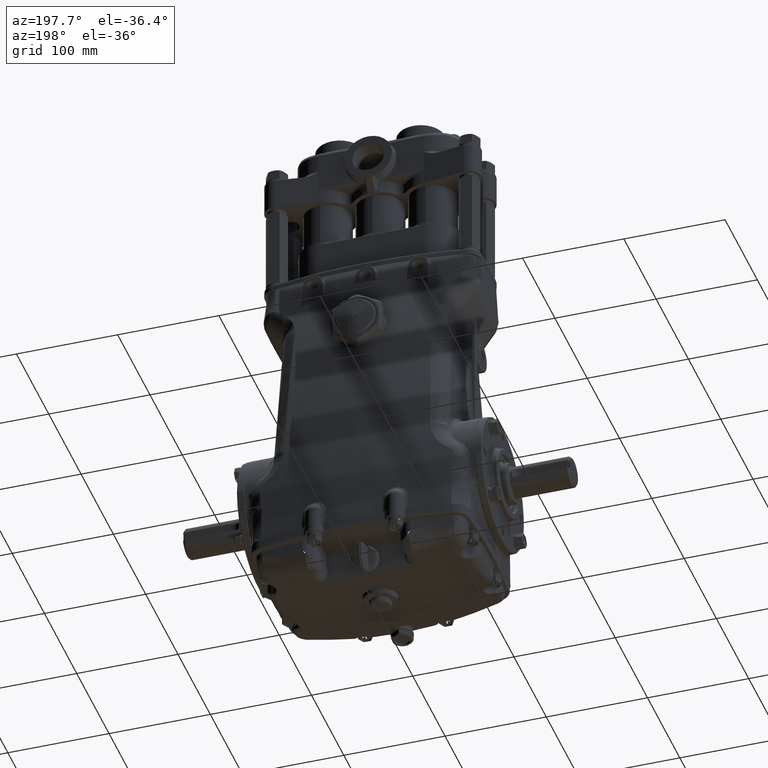
[diagram: clean part render]
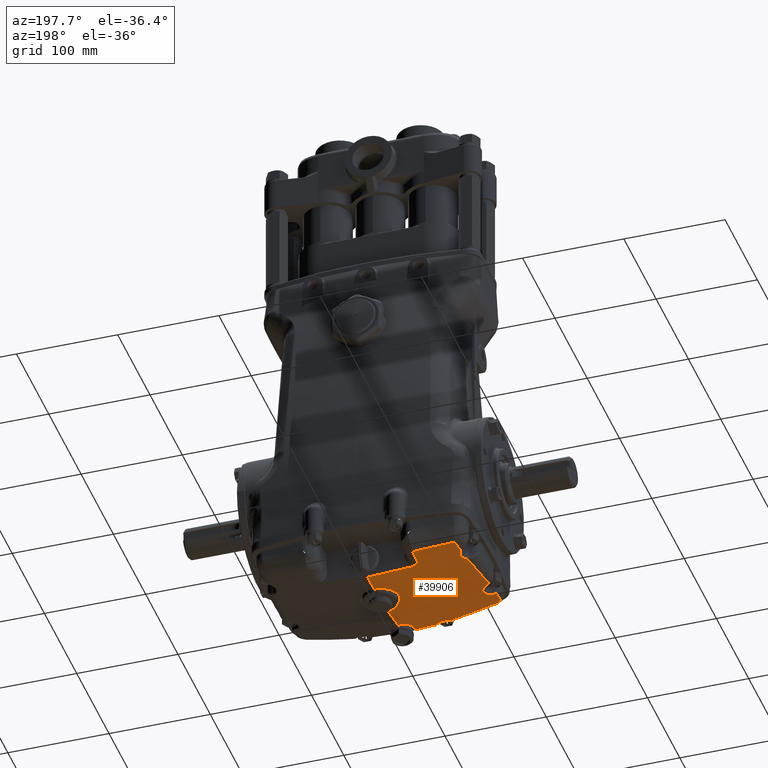
[diagram: same view with one face highlighted and labeled with its STEP entity id]
A machine part, auxiliary view. The second image highlights one B-rep face of the part: STEP entity #39906.
In plain terms, the highlighted toroidal blend (fillet) surface has major radius 100 mm and minor (blend) radius 400 mm.
Its self-contained STEP definition (entity closure, byte-faithful):
#182 = ORIENTED_EDGE ( 'NONE', *, *, #60740, .T. ) ;
#551 = VERTEX_POINT ( 'NONE', #3108 ) ;
#575 = EDGE_CURVE ( 'NONE', #52926, #551, #80609, .T. ) ;
#799 = CARTESIAN_POINT ( 'NONE',  ( -3.558036542331452168, 1.352642941017455414, -3.933798247993799180 ) ) ;
#1018 = CARTESIAN_POINT ( 'NONE',  ( -3.646664816487408256, 1.641861633727149217, -3.915456687385084233 ) ) ;
#1194 = CARTESIAN_POINT ( 'NONE',  ( -0.6658396590136336224, 0.3323736264464970946, -4.210664640046855034 ) ) ;
#1330 = CARTESIAN_POINT ( 'NONE',  ( -3.569211159553659751, 1.478279541948075426, -3.931601964570311303 ) ) ;
#1864 = VERTEX_POINT ( 'NONE', #64675 ) ;
#2119 = VERTEX_POINT ( 'NONE', #69071 ) ;
#2220 = CARTESIAN_POINT ( 'NONE',  ( -0.6313042896704010865, 0.3977660506733971535, -4.216109036910573593 ) ) ;
#2633 = CARTESIAN_POINT ( 'NONE',  ( -1.364082880242045270, -2.754656268253381945, -3.651789098153537250 ) ) ;
#2686 = B_SPLINE_CURVE_WITH_KNOTS ( 'NONE', 3,
 ( #100712, #92266, #45201, #101222 ),
 .UNSPECIFIED., .F., .F.,
 ( 4, 4 ),
 ( 6.049187461416408140E-17, 0.0003509764754748541729 ),
 .UNSPECIFIED. ) ;
#2752 = CARTESIAN_POINT ( 'NONE',  ( -0.5613533836159116941, 0.4979225309362133589, -4.224345706114779553 ) ) ;
#3108 = CARTESIAN_POINT ( 'NONE',  ( -1.702059072287212205, 1.572153632602977247, -4.183406504010035221 ) ) ;
#3159 = CARTESIAN_POINT ( 'NONE',  ( -1.294437020861755938, -2.804397625306670250, -3.642922082778243364 ) ) ;
#3569 = CARTESIAN_POINT ( 'NONE',  ( 0.000000000000000000, 1.398871258882495416, 15.42695392644761476 ) ) ;
#3743 = CARTESIAN_POINT ( 'NONE',  ( -0.4000620936014194773, -2.884814384941388532, -3.660086713610045450 ) ) ;
#3954 = CARTESIAN_POINT ( 'NONE',  ( -1.865905063327786717, -2.804038209525553160, -3.595586502535783158 ) ) ;
#4370 = CARTESIAN_POINT ( 'NONE',  ( -0.03875249259764600163, -2.168561309346253019, -3.848661969262286320 ) ) ;
#4460 = CARTESIAN_POINT ( 'NONE',  ( -3.646664816487408256, 1.641861633727149217, -3.915456687385084233 ) ) ;
#4896 = CARTESIAN_POINT ( 'NONE',  ( -0.3515532238361044892, -2.324802562732777744, -3.808304172492186002 ) ) ;
#5136 = ORIENTED_EDGE ( 'NONE', *, *, #7590, .T. ) ;
#5387 = CARTESIAN_POINT ( 'NONE',  ( -0.05520579533585188992, -2.170302024213781600, -3.848214535836679939 ) ) ;
#5585 = EDGE_CURVE ( 'NONE', #65033, #21472, #34047, .T. ) ;
#5893 = CARTESIAN_POINT ( 'NONE',  ( -3.557528499339322803, -1.379325260087862715, -3.682774166642691860 ) ) ;
#5901 = CARTESIAN_POINT ( 'NONE',  ( -0.3180972402130911592, -2.290199662132852421, -3.817280260578164164 ) ) ;
#6173 = ORIENTED_EDGE ( 'NONE', *, *, #25948, .T. ) ;
#6425 = CARTESIAN_POINT ( 'NONE',  ( -3.561708820047775781, -1.456503664008730770, -3.667735088596133508 ) ) ;
#6738 = CARTESIAN_POINT ( 'NONE',  ( -1.839702383721283807, 1.600343899877532339, -4.170657121996544703 ) ) ;
#6943 = CARTESIAN_POINT ( 'NONE',  ( -3.557813428778107134, -1.412516147443856118, -3.676632753172118129 ) ) ;
#7121 = CARTESIAN_POINT ( 'NONE',  ( -3.824356561232345797, 0.1923408286097718911, -3.836089084730111232 ) ) ;
#7381 = CARTESIAN_POINT ( 'NONE',  ( -3.115494169941632308, -2.681998754487130210, -3.467583127712007940 ) ) ;
#7465 = CARTESIAN_POINT ( 'NONE',  ( -3.601843088975583473, -1.195123805730012867, -3.706980786636408176 ) ) ;
#7590 = EDGE_CURVE ( 'NONE', #551, #65033, #56223, .T. ) ;
#8181 = CARTESIAN_POINT ( 'NONE',  ( -3.794676958802428945, 0.4450010077993709068, -3.859411781232362948 ) ) ;
#8597 = CARTESIAN_POINT ( 'NONE',  ( -0.7151464090954867681, 0.1947740051705818820, -4.199037833616118931 ) ) ;
#8686 = CARTESIAN_POINT ( 'NONE',  ( -3.874388036586342565, -0.2876572989029211880, -3.780937091861289012 ) ) ;
#9012 = B_SPLINE_CURVE_WITH_KNOTS ( 'NONE', 3,
 ( #20708, #85698, #30160, #13822, #102602, #94658, #13325, #94153, #78262, #85169 ),
 .UNSPECIFIED., .F., .F.,
 ( 4, 1, 1, 2, 2, 4 ),
 ( 0.000000000000000000, 0.2499999999999934497, 0.3749999999999841793, 0.4374999999999823475, 0.4999999999999804601, 1.000000000000000000 ),
 .UNSPECIFIED. ) ;
#9022 = EDGE_CURVE ( 'NONE', #45510, #17259, #82433, .T. ) ;
#9248 = CARTESIAN_POINT ( 'NONE',  ( -3.619782770036453101, 1.153003437474545256, -3.920465056550476390 ) ) ;
#9463 = CARTESIAN_POINT ( 'NONE',  ( -3.626514470255033373, 1.818311045645884860, -3.915473805396091134 ) ) ;
#9521 = CARTESIAN_POINT ( 'NONE',  ( -1.339466257598047827, -2.769926032194784060, -3.649340496259566358 ) ) ;
#9640 = CARTESIAN_POINT ( 'NONE',  ( -0.6436197337498654747, 0.3762321093314812126, -4.214322574150810574 ) ) ;
#10041 = CARTESIAN_POINT ( 'NONE',  ( -1.773899349228732936, -2.741790388264389922, -3.621584547401897947 ) ) ;
#10237 = CARTESIAN_POINT ( 'NONE',  ( -3.787706684817586211, 0.5026324402949193804, -3.864249473063884999 ) ) ;
#10555 = CARTESIAN_POINT ( 'NONE',  ( -1.844824157437632950, -2.785741652843495064, -3.602745482561447332 ) ) ;
#10713 = CARTESIAN_POINT ( 'NONE',  ( -3.889728796792139676, -0.9685609581753976682, -3.687365237285401331 ) ) ;
#11149 = CARTESIAN_POINT ( 'NONE',  ( -1.245739980400027758, -2.855051657995907100, -3.631991507844216649 ) ) ;
#11161 = CARTESIAN_POINT ( 'NONE',  ( -3.808751006990228394, -2.557495466567951237, -3.371037965365549116 ) ) ;
#11558 = CARTESIAN_POINT ( 'NONE',  ( -3.586567978287549696, 2.204579372434504414, -3.907619816998144646 ) ) ;
#11763 = CARTESIAN_POINT ( 'NONE',  ( -0.4664539487269453999, -2.573755688745085646, -3.743110695277837685 ) ) ;
#12201 = CARTESIAN_POINT ( 'NONE',  ( -3.749541916963616384, -2.585000395717646615, -3.375630808982953202 ) ) ;
#12288 = CARTESIAN_POINT ( 'NONE',  ( -0.4271558012051866471, -2.439955005846153657, -3.778285444153360206 ) ) ;
#12377 = VERTEX_POINT ( 'NONE', #102492 ) ;
#12809 = CARTESIAN_POINT ( 'NONE',  ( -0.4666539912037031557, -2.698749515008310507, -3.709959679532332633 ) ) ;
#13111 = CARTESIAN_POINT ( 'NONE',  ( -2.003069288343956700, 1.694939550856162658, -4.153111690900376907 ) ) ;
#13152 = DIRECTION ( 'NONE',  ( 0.000000000000000000, 0.000000000000000000, 1.000000000000000000 ) ) ;
#13310 = CARTESIAN_POINT ( 'NONE',  ( -0.4704666855075380627, -2.608629646960346271, -3.733894284309645872 ) ) ;
#13325 = CARTESIAN_POINT ( 'NONE',  ( -3.883271050964964832, -1.826111837211211730, -3.530696165240563733 ) ) ;
#13699 = CARTESIAN_POINT ( 'NONE',  ( 0.000000000000000000, -2.167208969044768896, -3.849009838011859141 ) ) ;
#13799 = CARTESIAN_POINT ( 'NONE',  ( -3.634850948037882556, -1.639999152143229777, -3.618346498524885657 ) ) ;
#13822 = CARTESIAN_POINT ( 'NONE',  ( -3.896749232888760073, -1.836051885781699644, -3.525805192844899238 ) ) ;
#14057 = AXIS2_PLACEMENT_3D ( 'NONE', #83957, #94465, #13152 ) ;
#14307 = CARTESIAN_POINT ( 'NONE',  ( -3.725752653479702303, -1.736515680076643919, -3.581122572377397173 ) ) ;
#14388 = CARTESIAN_POINT ( 'NONE',  ( 2.003172396172104453E-16, 1.552323950496150795, -4.257337785501216665 ) ) ;
#15149 = CARTESIAN_POINT ( 'NONE',  ( -1.758305726548180514, 1.576970522116405871, -4.178409998767908640 ) ) ;
#15870 = CARTESIAN_POINT ( 'NONE',  ( -3.872407700373652339, -0.9735357559509230096, -3.690100359438702515 ) ) ;
#16101 = CARTESIAN_POINT ( 'NONE',  ( -3.559074637217336967, 1.338662804192957356, -3.933559448103052247 ) ) ;
#16274 = ORIENTED_EDGE ( 'NONE', *, *, #95577, .T. ) ;
#16589 = CARTESIAN_POINT ( 'NONE',  ( -3.791746184675607534, 0.4692712009456285194, -3.861463653829530163 ) ) ;
#16631 = CARTESIAN_POINT ( 'NONE',  ( -3.557630086493761556, 1.394595553143769706, -3.933941454815170768 ) ) ;
#16836 = EDGE_CURVE ( 'NONE', #79165, #34597, #25662, .T. ) ;
#16861 = VERTEX_POINT ( 'NONE', #41904 ) ;
#16998 = ORIENTED_EDGE ( 'NONE', *, *, #27344, .T. ) ;
#17259 = VERTEX_POINT ( 'NONE', #104199 ) ;
#17313 = CARTESIAN_POINT ( 'NONE',  ( -0.4000620936014194773, -2.884814384941388532, -3.660086713610045450 ) ) ;
#17407 = CARTESIAN_POINT ( 'NONE',  ( -1.822204368419263698, -2.769635333946053102, -3.609373799083536394 ) ) ;
#17527 = CARTESIAN_POINT ( 'NONE',  ( -0.2630543390630924461, 0.7080051471990993495, -4.241181116889840119 ) ) ;
#17620 = CARTESIAN_POINT ( 'NONE',  ( -3.845602816808145974, -0.001297524695629234323, -3.815247980709609799 ) ) ;
#17673 = CARTESIAN_POINT ( 'NONE',  ( -3.629613217835725880, 1.619489777949896236, -3.919021646392297331 ) ) ;
#17952 = VERTEX_POINT ( 'NONE', #85742 ) ;
#18064 = CARTESIAN_POINT ( 'NONE',  ( -0.5187115258286668640, 0.5419200791875214973, -4.227912918844326740 ) ) ;
#18470 = CARTESIAN_POINT ( 'NONE',  ( -1.582301698735254281, -2.697416655977635358, -3.650503169443640061 ) ) ;
#18537 = ORIENTED_EDGE ( 'NONE', *, *, #42376, .T. ) ;
#18621 = CARTESIAN_POINT ( 'NONE',  ( -0.0003315103618063512930, -2.167209043041733008, -3.849009818742299860 ) ) ;
#19097 = CARTESIAN_POINT ( 'NONE',  ( -0.4919088603346521427, 0.5673527248237739684, -4.229967792817655337 ) ) ;
#19099 = CARTESIAN_POINT ( 'NONE',  ( -3.823806146129085537, -1.793153042647171569, -3.549776368419175654 ) ) ;
#19621 = CARTESIAN_POINT ( 'NONE',  ( -0.04758081235691756505, -0.7082800023635058562, -4.116432384736667949 ) ) ;
#20181 = CARTESIAN_POINT ( 'NONE',  ( -0.4435138577957550843, -2.795684760062581375, -3.684059013804886540 ) ) ;
#20691 = CARTESIAN_POINT ( 'NONE',  ( -0.004850355540382600417, -2.167229841399113788, -3.849004462922370084 ) ) ;
#20708 = CARTESIAN_POINT ( 'NONE',  ( -3.931430012626015102, -1.867895298749763677, -3.511778674847698234 ) ) ;
#20804 = CARTESIAN_POINT ( 'NONE',  ( -1.872930650244136963, -2.810002607033998956, -3.593235740307789250 ) ) ;
#21210 = CARTESIAN_POINT ( 'NONE',  ( -0.4199776336757888862, -2.850308494666960790, -3.669386021508888707 ) ) ;
#21472 = VERTEX_POINT ( 'NONE', #45711 ) ;
#21591 = CARTESIAN_POINT ( 'NONE',  ( -2.008673690766307640, 1.931285806549176032, -4.148006241757110857 ) ) ;
#21725 = CARTESIAN_POINT ( 'NONE',  ( -3.782867252268417690, -1.773366506794162190, -3.562143213188625257 ) ) ;
#21732 = CARTESIAN_POINT ( 'NONE',  ( -0.4710030549154931023, -2.638747068667179008, -3.725911520241202091 ) ) ;
#21854 = VERTEX_POINT ( 'NONE', #19099 ) ;
#22232 = CARTESIAN_POINT ( 'NONE',  ( -3.676278122297544471, -1.691724115249404470, -3.599952879475762035 ) ) ;
#22353 = CARTESIAN_POINT ( 'NONE',  ( -1.876542483643144577, -2.812870495884016275, -3.592079507783254577 ) ) ;
#22747 = CARTESIAN_POINT ( 'NONE',  ( -3.797900736036087022, -1.781521253002814831, -3.557435384201006467 ) ) ;
#23117 = CARTESIAN_POINT ( 'NONE',  ( -1.876542483643144577, -2.812870495884016275, -3.592079507783254577 ) ) ;
#23283 = CARTESIAN_POINT ( 'NONE',  ( -3.823806146129085537, -1.793153042647171569, -3.549776368419175654 ) ) ;
#23797 = CARTESIAN_POINT ( 'NONE',  ( -3.600898654270699772, -1.582827322375441659, -3.636138242680543531 ) ) ;
#23979 = CARTESIAN_POINT ( 'NONE',  ( -3.856021650520939037, -0.1013363223085721743, -3.803681025626075574 ) ) ;
#24025 = CARTESIAN_POINT ( 'NONE',  ( -3.587931312282341079, 1.215500707963219851, -3.927282676930602179 ) ) ;
#24487 = CARTESIAN_POINT ( 'NONE',  ( -3.882422683516364881, -0.3767430802198906692, -3.769234801205942009 ) ) ;
#24540 = CARTESIAN_POINT ( 'NONE',  ( -3.564906708623706955, 1.296798175091047334, -3.932267049232522460 ) ) ;
#25433 = CARTESIAN_POINT ( 'NONE',  ( -0.6757728256282572454, 0.3100357875975383593, -4.208792192486542127 ) ) ;
#25532 = CARTESIAN_POINT ( 'NONE',  ( -1.890906886572283119, 1.623384772786901076, -4.165469755234848748 ) ) ;
#25577 = CARTESIAN_POINT ( 'NONE',  ( -3.590000298304392157, 1.545245332004949290, -3.927292317479010197 ) ) ;
#25648 = ORIENTED_EDGE ( 'NONE', *, *, #102072, .T. ) ;
#25662 = B_SPLINE_CURVE_WITH_KNOTS ( 'NONE', 3,
 ( #64645, #72084, #104330, #24487, #8686, #31897, #64126, #57241, #49316, #33444, #57763, #56727, #23979, #89998, #71536, #17620, #81555, #7121, #80527, #79473, #56199, #8181, #40354, #88966, #16589, #48799, #81035, #74149, #10237, #100564, #42419, #50873 ),
 .UNSPECIFIED., .F., .F.,
 ( 4, 2, 2, 1, 1, 2, 2, 1, 1, 1, 2, 2, 2, 1, 1, 1, 2, 2, 1, 1, 4 ),
 ( 0.3235526513223349054, 0.4296512744850297105, 0.4827005860663771131, 0.4959629139617139915, 0.4992784959355481833, 0.4996929436822774573, 0.5001073914290067313, 0.5009362869224653902, 0.5025940779093825972, 0.5092252418570515360, 0.5357498976477277353, 0.5887992092290801338, 0.6153238650197562221, 0.6219550289674252719, 0.6236128199543424788, 0.6244417154478011378, 0.6248561631945304118, 0.6252706109412597968, 0.6285861929150942107, 0.6418485208104317552, 0.7479471439731324445 ),
 .UNSPECIFIED. ) ;
#25784 = CARTESIAN_POINT ( 'NONE',  ( -3.629545704127817185, 1.791176114491642046, -3.915610467165770991 ) ) ;
#25948 = EDGE_CURVE ( 'NONE', #2119, #17952, #2686, .T. ) ;
#26967 = CARTESIAN_POINT ( 'NONE',  ( -0.6823706657701417155, -2.879987158023668670, -3.655534384585330532 ) ) ;
#27009 = CARTESIAN_POINT ( 'NONE',  ( -0.5751992477293694783, -0.4339937578021841325, -4.142675562527530886 ) ) ;
#27344 = EDGE_CURVE ( 'NONE', #21472, #56263, #80618, .T. ) ;
#27470 = ORIENTED_EDGE ( 'NONE', *, *, #9022, .T. ) ;
#27530 = CARTESIAN_POINT ( 'NONE',  ( -0.09457813546736117127, -0.7037112056917489422, -4.116877650910711672 ) ) ;
#27608 = CARTESIAN_POINT ( 'NONE',  ( -3.326332494310697552, 2.245008663854715980, -3.953787052236676924 ) ) ;
#28047 = CARTESIAN_POINT ( 'NONE',  ( -0.6901489628261248122, -0.2298383925617558943, -4.161550217411766006 ) ) ;
#28102 = CARTESIAN_POINT ( 'NONE',  ( -0.2120262397635651885, -2.217047972753988017, -3.836183668152953974 ) ) ;
#28530 = CARTESIAN_POINT ( 'NONE',  ( -1.865905063327786717, -2.804038209525553160, -3.595586502535783158 ) ) ;
#28564 = CARTESIAN_POINT ( 'NONE',  ( -0.7326448474044733317, -0.02334760493757999725, -4.180067160936830284 ) ) ;
#28614 = CARTESIAN_POINT ( 'NONE',  ( -0.3335317334427909119, -2.304989040155785762, -3.813447997316724791 ) ) ;
#28807 = CARTESIAN_POINT ( 'NONE',  ( 2.003172396172104453E-16, 1.552323950496150795, -4.257337785501216665 ) ) ;
#29011 = VERTEX_POINT ( 'NONE', #13699 ) ;
#29040 = CARTESIAN_POINT ( 'NONE',  ( -3.780035846569725688, -2.573797604094840263, -3.372507778797797506 ) ) ;
#29073 = CARTESIAN_POINT ( 'NONE',  ( -0.4762676445515682810, -0.5345743794389585801, -4.133164754572899113 ) ) ;
#29121 = CARTESIAN_POINT ( 'NONE',  ( -0.2588357166316751501, -2.244699816279652094, -3.829048474491703491 ) ) ;
#29203 = ORIENTED_EDGE ( 'NONE', *, *, #65518, .T. ) ;
#29391 = ORIENTED_EDGE ( 'NONE', *, *, #90721, .T. ) ;
#29623 = CARTESIAN_POINT ( 'NONE',  ( -0.4688351809062094033, -2.678922122723515375, -3.715237212575820180 ) ) ;
#30139 = CARTESIAN_POINT ( 'NONE',  ( -3.681603483045332137, -1.086558863354843085, -3.709808868518035929 ) ) ;
#30146 = CARTESIAN_POINT ( 'NONE',  ( -0.4105939205455987340, -2.867825373719068871, -3.664669352164220850 ) ) ;
#30160 = CARTESIAN_POINT ( 'NONE',  ( -3.911795973998309250, -1.848312863953837537, -3.520077436694757811 ) ) ;
#30224 = CARTESIAN_POINT ( 'NONE',  ( -3.894353775054843592, -2.412844718384135501, -3.391082440071080839 ) ) ;
#30981 = CARTESIAN_POINT ( 'NONE',  ( -1.702059072287212205, 1.572153632602977247, -4.183406504010035221 ) ) ;
#31097 = CARTESIAN_POINT ( 'NONE',  ( -2.652583506864619523, -2.737926215506778505, -3.520903792172098257 ) ) ;
#31188 = CARTESIAN_POINT ( 'NONE',  ( -3.611056957081335117, -1.602384896594928110, -3.630365298136287056 ) ) ;
#31715 = CARTESIAN_POINT ( 'NONE',  ( -3.741710729344374098, -1.036040928004970940, -3.706277664822343443 ) ) ;
#31897 = CARTESIAN_POINT ( 'NONE',  ( -3.863250567740788011, -0.1732672366160281363, -3.795056054097240672 ) ) ;
#32275 = B_SPLINE_CURVE_WITH_KNOTS ( 'NONE', 3,
 ( #23283, #95157, #22747, #21725, #54976, #56017, #78766, #14307, #87216, #22232, #54450, #47583, #13799, #86172, #31188, #23797, #70831, #46018, #47069, #6425, #78243, #6943, #103087, #5893, #94635, #38063, #39113, #55491, #63418, #79814, #7465, #39646, #38587, #30139, #71892, #48104, #104145, #31715, #80345, #70326, #15870 ),
 .UNSPECIFIED., .F., .F.,
 ( 4, 1, 2, 2, 2, 2, 2, 2, 2, 2, 2, 2, 2, 2, 2, 2, 2, 2, 2, 2, 4 ),
 ( 0.000000000000000000, 0.03124999999999832773, 0.04687499999999751588, 0.06249999999999671096, 0.1249999999999958089, 0.1874999999999948930, 0.2187499999999944489, 0.2499999999999940048, 0.3124999999999937272, 0.3749999999999933942, 0.4374999999999931166, 0.4687499999999930611, 0.4999999999999930056, 0.5624999999999931166, 0.5937499999999933387, 0.6249999999999936717, 0.7499999999999951150, 0.8124999999999960032, 0.8437499999999964473, 0.8749999999999968914, 1.000000000000000000 ),
 .UNSPECIFIED. ) ;
#33193 = CARTESIAN_POINT ( 'NONE',  ( -3.630471576266146805, 1.782938555278715365, -3.915643392077000851 ) ) ;
#33444 = CARTESIAN_POINT ( 'NONE',  ( -3.856571851715241195, -0.1067341529102286413, -3.803042659615984977 ) ) ;
#33488 = CARTESIAN_POINT ( 'NONE',  ( -3.570906502327740206, 1.485177623508451727, -3.931252389190742491 ) ) ;
#33917 = ORIENTED_EDGE ( 'NONE', *, *, #50280, .T. ) ;
#33967 = CARTESIAN_POINT ( 'NONE',  ( -1.962851284236456051, 1.666562271230724201, -4.157698992238735514 ) ) ;
#34047 = CIRCLE ( 'NONE', #76235, 15.74803149606299613 ) ;
#34597 = VERTEX_POINT ( 'NONE', #94522 ) ;
#34808 = CARTESIAN_POINT ( 'NONE',  ( -1.539795395510776155, -2.699382030295283119, -3.653449653502197858 ) ) ;
#34891 = CARTESIAN_POINT ( 'NONE',  ( -3.889791300497213555, -2.457450194102140273, -3.380663499719030796 ) ) ;
#34930 = CARTESIAN_POINT ( 'NONE',  ( -0.5916356069846164800, 0.4596852687933722370, -4.221221596634565643 ) ) ;
#35324 = CARTESIAN_POINT ( 'NONE',  ( -3.922866597083941365, -0.9542416793586864232, -3.682798854708527081 ) ) ;
#35438 = CARTESIAN_POINT ( 'NONE',  ( -0.3199554128038990530, -0.6378019422072793709, -4.123271795498789416 ) ) ;
#35457 = CARTESIAN_POINT ( 'NONE',  ( -3.894353775054843592, -2.412844718384135501, -3.391082440071080839 ) ) ;
#35926 = B_SPLINE_CURVE_WITH_KNOTS ( 'NONE', 3,
 ( #3954, #53546, #20804, #22353 ),
 .UNSPECIFIED., .F., .F.,
 ( 4, 4 ),
 ( 0.000000000000000000, 0.0003623067658960041262 ),
 .UNSPECIFIED. ) ;
#35973 = CARTESIAN_POINT ( 'NONE',  ( -0.7333930364450115258, -4.736762322988630755E-16, -4.182122793431191532 ) ) ;
#36048 = CARTESIAN_POINT ( 'NONE',  ( -2.008661041545683812, 2.395021426171620060, -4.123632080681848500 ) ) ;
#36327 = CARTESIAN_POINT ( 'NONE',  ( -3.606405909826833511, 2.004984302575314015, -3.913313031294023858 ) ) ;
#36465 = CARTESIAN_POINT ( 'NONE',  ( -3.799545904417045428, -2.563412623788971612, -3.371332548413954022 ) ) ;
#36547 = CARTESIAN_POINT ( 'NONE',  ( -0.1414206404958676944, -2.188929745826314832, -3.843425143802710497 ) ) ;
#36612 = EDGE_LOOP ( 'NONE', ( #5136, #91312, #16998, #33917, #29203, #25648, #61902, #6173, #88382, #16274, #182, #92108, #27470, #71614, #72067, #37949, #64117, #38469, #85339, #18537, #29391, #85835 ) ) ;
#36900 = CARTESIAN_POINT ( 'NONE',  ( -2.008661041545683812, 2.395021426171620060, -4.123632080681848500 ) ) ;
#37006 = CARTESIAN_POINT ( 'NONE',  ( -0.7247687298725997707, -0.09338117888336211481, -4.173847195936508214 ) ) ;
#37049 = CARTESIAN_POINT ( 'NONE',  ( -0.4364444353106010643, -2.814216174383458391, -3.679086746490721094 ) ) ;
#37558 = CARTESIAN_POINT ( 'NONE',  ( -0.3550262394684820522, -2.328743715141699866, -3.807280587534016103 ) ) ;
#37949 = ORIENTED_EDGE ( 'NONE', *, *, #48757, .T. ) ;
#38063 = CARTESIAN_POINT ( 'NONE',  ( -3.562290405531893800, -1.323502582385556403, -3.691970927694604221 ) ) ;
#38071 = CARTESIAN_POINT ( 'NONE',  ( -0.4215705963410009138, -2.428415481028420420, -3.781304039169750553 ) ) ;
#38469 = ORIENTED_EDGE ( 'NONE', *, *, #46327, .T. ) ;
#38587 = CARTESIAN_POINT ( 'NONE',  ( -3.666309327381368721, -1.103004602323025773, -3.710060390205493608 ) ) ;
#38789 = CARTESIAN_POINT ( 'NONE',  ( -0.5680533067871709196, 1.553977244222778387, -4.251173788573900048 ) ) ;
#39113 = CARTESIAN_POINT ( 'NONE',  ( -3.569199946859465733, -1.290846983093253630, -3.696464366414474068 ) ) ;
#39646 = CARTESIAN_POINT ( 'NONE',  ( -3.623986498022464531, -1.156194240433309428, -3.709360853722023066 ) ) ;
#39906 = ADVANCED_FACE ( 'NONE', ( #75917 ), #58223, .T. ) ;
#40354 = CARTESIAN_POINT ( 'NONE',  ( -3.792665419278174799, 0.4616671380343815856, -3.860823300251764234 ) ) ;
#40399 = CARTESIAN_POINT ( 'NONE',  ( -3.627159963890523198, 1.141184636597230018, -3.918890905537267599 ) ) ;
#40913 = CARTESIAN_POINT ( 'NONE',  ( -3.669700742828946982, 1.085740204855080382, -3.909843487322180788 ) ) ;
#41708 = CARTESIAN_POINT ( 'NONE',  ( -1.568112543660154401, -2.697609937580156547, -3.651622421538722740 ) ) ;
#41820 = CARTESIAN_POINT ( 'NONE',  ( -0.7333930364450115258, -4.736762322988630755E-16, -4.182122793431191532 ) ) ;
#41904 = CARTESIAN_POINT ( 'NONE',  ( -3.586567978287549696, 2.204579372434504414, -3.907619816998144646 ) ) ;
#42376 = EDGE_CURVE ( 'NONE', #16861, #1864, #49293, .T. ) ;
#42419 = CARTESIAN_POINT ( 'NONE',  ( -3.741802068870107245, 0.8746626578058293022, -3.891171926211064669 ) ) ;
#42736 = CARTESIAN_POINT ( 'NONE',  ( -1.865905063327786717, -2.804038209525553160, -3.595586502535783158 ) ) ;
#42855 = CARTESIAN_POINT ( 'NONE',  ( -0.3314371216564471756, 0.6791190190455137499, -4.238900926288713400 ) ) ;
#42936 = CARTESIAN_POINT ( 'NONE',  ( -2.538175973886774628, 2.344752768743589399, -4.066935304130395501 ) ) ;
#43747 = CARTESIAN_POINT ( 'NONE',  ( -3.618610932917983192, 1.890614810592296857, -3.914835308199426933 ) ) ;
#43952 = CARTESIAN_POINT ( 'NONE',  ( -0.4696087652016088243, -2.669014039567201735, -3.717871877192220786 ) ) ;
#44426 = CARTESIAN_POINT ( 'NONE',  ( -0.6279333557682612588, -0.3564562210456924674, -4.149901587129065206 ) ) ;
#44476 = CARTESIAN_POINT ( 'NONE',  ( -0.1095595880802628652, -2.179587292406928611, -3.845828589951099996 ) ) ;
#45015 = CARTESIAN_POINT ( 'NONE',  ( -0.4554017452758363227, -2.757384325294819583, -3.694314258337130674 ) ) ;
#45201 = CARTESIAN_POINT ( 'NONE',  ( -1.251971637957772110, -2.848422811770495944, -3.633445997943378636 ) ) ;
#45315 = CARTESIAN_POINT ( 'NONE',  ( -1.997352902426142940, 1.690748888302129327, -4.153774301534654434 ) ) ;
#45470 = CARTESIAN_POINT ( 'NONE',  ( -0.7048825744681508354, -0.1855135888287400558, -4.165576125922034301 ) ) ;
#45510 = VERTEX_POINT ( 'NONE', #35457 ) ;
#45515 = CARTESIAN_POINT ( 'NONE',  ( -0.4345050193925160675, -2.456275259616834017, -3.774012791601869754 ) ) ;
#45711 = CARTESIAN_POINT ( 'NONE',  ( 1.484937481530693995E-28, 0.7562672354312620637, -4.244969138634028916 ) ) ;
#45806 = CARTESIAN_POINT ( 'NONE',  ( -1.980190692304566902, 1.678499398813846799, -4.155740781809343254 ) ) ;
#46018 = CARTESIAN_POINT ( 'NONE',  ( -3.576623568143437293, -1.521544856101116450, -3.652603060102907140 ) ) ;
#46024 = CARTESIAN_POINT ( 'NONE',  ( -0.2935360423449569489, -2.269699446201539406, -3.822586271018620252 ) ) ;
#46062 = B_SPLINE_CURVE_WITH_KNOTS ( 'NONE', 3,
 ( #1018, #50106, #57503, #33193, #65435, #25784, #97697, #9463, #90265, #43747, #36327, #93405, #11558 ),
 .UNSPECIFIED., .F., .F.,
 ( 4, 2, 2, 1, 1, 1, 2, 4 ),
 ( 0.8780055780770459339, 0.9085041835577849501, 0.9104103464003311386, 0.9123165092428773271, 0.9161288349279695931, 0.9237534862981541250, 0.9390027890385231890, 1.000000000000000000 ),
 .UNSPECIFIED. ) ;
#46327 = EDGE_CURVE ( 'NONE', #34597, #75880, #52570, .T. ) ;
#47069 = CARTESIAN_POINT ( 'NONE',  ( -3.565556694311471375, -1.478300578887186800, -3.662912931871748601 ) ) ;
#47583 = CARTESIAN_POINT ( 'NONE',  ( -3.647908808587282170, -1.657888597091843330, -3.612256570413352019 ) ) ;
#48104 = CARTESIAN_POINT ( 'NONE',  ( -3.714862701671600931, -1.056561312265949848, -3.708223070828036150 ) ) ;
#48757 = EDGE_CURVE ( 'NONE', #84517, #79165, #101413, .T. ) ;
#48799 = CARTESIAN_POINT ( 'NONE',  ( -3.791561897157138539, 0.4707945788504462326, -3.861591610310981526 ) ) ;
#48846 = CARTESIAN_POINT ( 'NONE',  ( -3.559631653986548905, 1.422800986008825541, -3.933555657411801132 ) ) ;
#49293 = B_SPLINE_CURVE_WITH_KNOTS ( 'NONE', 3,
 ( #67256, #27608, #67774, #42936, #91574, #36048 ),
 .UNSPECIFIED., .F., .F.,
 ( 4, 2, 4 ),
 ( 0.01283934888689720714, 0.03321189596127591820, 0.05358444303565463446 ),
 .UNSPECIFIED. ) ;
#49316 = CARTESIAN_POINT ( 'NONE',  ( -3.856719873080187710, -0.1081883091147055054, -3.802870456949497768 ) ) ;
#49740 = CARTESIAN_POINT ( 'NONE',  ( -0.1931858690048544602, 0.7308351785001837575, -4.242976782697793325 ) ) ;
#49882 = CARTESIAN_POINT ( 'NONE',  ( -3.646664816487408256, 1.641861633727149217, -3.915456687385084233 ) ) ;
#50106 = CARTESIAN_POINT ( 'NONE',  ( -3.641150822456610037, 1.689045926973561151, -3.915754152014077949 ) ) ;
#50275 = CARTESIAN_POINT ( 'NONE',  ( -0.4348432745133541943, 0.6142312176195136031, -4.233734301648255816 ) ) ;
#50280 = EDGE_CURVE ( 'NONE', #56263, #52650, #64394, .T. ) ;
#50673 = CARTESIAN_POINT ( 'NONE',  ( -1.747962851359756931, -2.730000400886859246, -3.627202804908173039 ) ) ;
#50829 = CARTESIAN_POINT ( 'NONE',  ( -0.0006792858872584666341, -2.167209399912447765, -3.849009726656778430 ) ) ;
#50873 = CARTESIAN_POINT ( 'NONE',  ( -3.720859036953444665, 1.037867726598609819, -3.899014983528266587 ) ) ;
#50913 = DIRECTION ( 'NONE',  ( -1.000000000000000000, -0.000000000000000000, -0.000000000000000000 ) ) ;
#51191 = CARTESIAN_POINT ( 'NONE',  ( -1.273772870566434845, -2.823676290073320327, -3.638950668788394793 ) ) ;
#51311 = CARTESIAN_POINT ( 'NONE',  ( -0.4204048834670997548, -0.5776786111235089338, -4.129050581195664371 ) ) ;
#51846 = CARTESIAN_POINT ( 'NONE',  ( -0.02377572052185846288, -0.7094424206646796627, -4.116319017392694235 ) ) ;
#51895 = CARTESIAN_POINT ( 'NONE',  ( -0.4624397592743121344, -2.728321011074997138, -3.702080546859464416 ) ) ;
#52350 = CARTESIAN_POINT ( 'NONE',  ( -0.6511716888856826646, -0.3151885873837880214, -4.153718519512405116 ) ) ;
#52570 = B_SPLINE_CURVE_WITH_KNOTS ( 'NONE', 3,
 ( #80034, #80568, #104372, #96425, #40913, #64689, #81604, #40399, #9248, #96946, #24025, #73682, #72642, #24540, #73154, #16101, #799, #56249, #16631, #48846, #81081, #88483, #1330, #33488, #97997, #25577, #90050, #17673, #49882 ),
 .UNSPECIFIED., .F., .F.,
 ( 4, 2, 2, 2, 2, 2, 2, 2, 2, 2, 1, 2, 2, 2, 4 ),
 ( 0.000000000000000000, 0.06249999999999945877, 0.1249999999999989175, 0.1874999999999983902, 0.2499999999999978351, 0.3749999999999969469, 0.4374999999999971689, 0.4999999999999973355, 0.5624999999999975575, 0.6249999999999976685, 0.6874999999999977796, 0.7187499999999982236, 0.7499999999999985567, 0.8749999999999993339, 1.000000000000000000 ),
 .UNSPECIFIED. ) ;
#52650 = VERTEX_POINT ( 'NONE', #102812 ) ;
#52837 = CARTESIAN_POINT ( 'NONE',  ( -3.837911201487526736, -2.532833158084777825, -3.371615148318053201 ) ) ;
#52915 = CARTESIAN_POINT ( 'NONE',  ( -0.2809030884551332319, -2.259870291188983860, -3.825128626396551823 ) ) ;
#52926 = VERTEX_POINT ( 'NONE', #99065 ) ;
#53427 = B_SPLINE_CURVE_WITH_KNOTS ( 'NONE', 3,
 ( #100964, #84563, #12201, #76630, #29040, #36465, #11161, #93022, #59208, #99915, #52837, #85610, #34891, #91464 ),
 .UNSPECIFIED., .F., .F.,
 ( 4, 2, 2, 2, 2, 2, 4 ),
 ( 0.000000000000000000, 0.1250000000000028033, 0.2500000000000056066, 0.3750000000000084377, 0.4375000000000098255, 0.5000000000000112133, 1.000000000000000000 ),
 .UNSPECIFIED. ) ;
#53438 = CARTESIAN_POINT ( 'NONE',  ( -0.1492240265829814783, -2.191407617498101423, -3.842787493928314646 ) ) ;
#53546 = CARTESIAN_POINT ( 'NONE',  ( -1.869383322616463117, -2.807057063106219719, -3.594405301457350710 ) ) ;
#53792 = CARTESIAN_POINT ( 'NONE',  ( -2.008668713783337445, 2.163255561837236662, -4.138398513542967727 ) ) ;
#53935 = CARTESIAN_POINT ( 'NONE',  ( -0.4096906222854424517, -2.405087091569741542, -3.787402726569994549 ) ) ;
#54450 = CARTESIAN_POINT ( 'NONE',  ( -3.654759697775751714, -1.666555581878081504, -3.609193777135003334 ) ) ;
#54539 = CARTESIAN_POINT ( 'NONE',  ( -3.924604866268332604, -2.057005198355785769, -3.472238758579972551 ) ) ;
#54648 = CARTESIAN_POINT ( 'NONE',  ( -1.702059072287212205, 1.572153632602977247, -4.183406504010035221 ) ) ;
#54711 = EDGE_CURVE ( 'NONE', #21854, #84517, #32275, .T. ) ;
#54976 = CARTESIAN_POINT ( 'NONE',  ( -3.772934225025008637, -1.767723657665168258, -3.565301345174031411 ) ) ;
#55306 = CARTESIAN_POINT ( 'NONE',  ( -1.730522399616355012, 1.572818217879113023, -4.180928721025569672 ) ) ;
#55491 = CARTESIAN_POINT ( 'NONE',  ( -3.571925563724398067, -1.280049169528286290, -3.697855605797109479 ) ) ;
#55935 = CARTESIAN_POINT ( 'NONE',  ( -3.872407700373652339, -0.9735357559509230096, -3.690100359438702515 ) ) ;
#56017 = CARTESIAN_POINT ( 'NONE',  ( -3.767941034040724446, -1.764754778973809168, -3.566913580876192924 ) ) ;
#56199 = CARTESIAN_POINT ( 'NONE',  ( -3.796477294136947123, 0.4300154785227613408, -3.858121665002101519 ) ) ;
#56223 = B_SPLINE_CURVE_WITH_KNOTS ( 'NONE', 3,
 ( #54648, #86892, #76915, #38789, #101226, #28807 ),
 .UNSPECIFIED., .F., .F.,
 ( 4, 2, 4 ),
 ( 0.000000000000000000, 0.02164562709222141862, 0.04329125418444283724 ),
 .UNSPECIFIED. ) ;
#56249 = CARTESIAN_POINT ( 'NONE',  ( -3.557316567779847283, 1.380641737849226391, -3.933988807873647353 ) ) ;
#56263 = VERTEX_POINT ( 'NONE', #91058 ) ;
#56727 = CARTESIAN_POINT ( 'NONE',  ( -3.856336081969278684, -0.1044199386032027693, -3.803316479309694298 ) ) ;
#56795 = EDGE_CURVE ( 'NONE', #12377, #45510, #53427, .T. ) ;
#57241 = CARTESIAN_POINT ( 'NONE',  ( -3.857385483870375165, -0.1147306797760912073, -3.802095298615916885 ) ) ;
#57503 = CARTESIAN_POINT ( 'NONE',  ( -3.635856493179457694, 1.735134361607337139, -3.915810476285058517 ) ) ;
#57557 = CARTESIAN_POINT ( 'NONE',  ( -1.415146399910848896, -2.729585237976971168, -3.654921214786273964 ) ) ;
#57763 = CARTESIAN_POINT ( 'NONE',  ( -3.856492926874590665, -0.1059592762760340756, -3.803134364853097971 ) ) ;
#58223 = TOROIDAL_SURFACE ( 'NONE', #78506, 3.937007874015747255, 15.74803149606299257 ) ;
#58614 = CARTESIAN_POINT ( 'NONE',  ( -1.441755554501353176, -2.719601105694878118, -3.655645177967421500 ) ) ;
#58772 = CARTESIAN_POINT ( 'NONE',  ( -9.594870526277489442E-05, -2.167208969864354628, -3.849009837873281992 ) ) ;
#59140 = EDGE_CURVE ( 'NONE', #17259, #21854, #9012, .T. ) ;
#59208 = CARTESIAN_POINT ( 'NONE',  ( -3.825924641128744419, -2.544029179437345523, -3.371107991677425364 ) ) ;
#59242 = CARTESIAN_POINT ( 'NONE',  ( -0.7307805406606031617, -0.04669337059872072371, -4.178000921773150189 ) ) ;
#59287 = CARTESIAN_POINT ( 'NONE',  ( -3.922866597083941365, -0.9542416793586864232, -3.682798854708527081 ) ) ;
#59929 = B_SPLINE_CURVE_WITH_KNOTS ( 'NONE', 3,
 ( #36900, #53792, #21591, #84492 ),
 .UNSPECIFIED., .F., .F.,
 ( 4, 4 ),
 ( 4.304351991299643960E-16, 0.01769121847157051342 ),
 .UNSPECIFIED. ) ;
#60349 = CARTESIAN_POINT ( 'NONE',  ( -0.002417758106188943809, -2.167214113682530474, -3.849008512274060934 ) ) ;
#60740 = EDGE_CURVE ( 'NONE', #94293, #12377, #100706, .T. ) ;
#60800 = CARTESIAN_POINT ( 'NONE',  ( -0.6154076341949831219, -0.3763659286295493733, -4.148051604193503827 ) ) ;
#60847 = CARTESIAN_POINT ( 'NONE',  ( -0.2543312979816887420, -2.241774624488717116, -3.829803928739639929 ) ) ;
#61298 = CARTESIAN_POINT ( 'NONE',  ( -0.4394286413597907615, -0.5639547413922114671, -4.130363432804765367 ) ) ;
#61344 = CARTESIAN_POINT ( 'NONE',  ( -0.4640075653129823730, -2.558866209220860721, -3.747039733838263054 ) ) ;
#61869 = CARTESIAN_POINT ( 'NONE',  ( -0.3936161598091762470, -2.378162513431485880, -3.794426700041710454 ) ) ;
#61902 = ORIENTED_EDGE ( 'NONE', *, *, #84242, .T. ) ;
#62801 = CARTESIAN_POINT ( 'NONE',  ( -1.876542483643144577, -2.812870495884016275, -3.592079507783254577 ) ) ;
#63418 = CARTESIAN_POINT ( 'NONE',  ( -3.578222373946974955, -1.258628555549892170, -3.700424945221135520 ) ) ;
#64117 = ORIENTED_EDGE ( 'NONE', *, *, #16836, .T. ) ;
#64126 = CARTESIAN_POINT ( 'NONE',  ( -3.860397815899258234, -0.1444801899405782630, -3.798553944161679130 ) ) ;
#64376 = CARTESIAN_POINT ( 'NONE',  ( -2.497898342742233435, -2.755055460498212927, -3.537201936879522890 ) ) ;
#64394 = B_SPLINE_CURVE_WITH_KNOTS ( 'NONE', 3,
 ( #35973, #28564, #59242, #37006, #77691, #45470, #28047, #69258, #52350, #44426, #60800, #27009, #101504, #91496, #29073, #61298, #51311, #92021, #35438, #75620, #67693, #99951, #27530, #19621, #51846, #78204 ),
 .UNSPECIFIED., .F., .F.,
 ( 4, 2, 2, 2, 2, 2, 2, 2, 2, 2, 2, 2, 4 ),
 ( 0.02967068868578288249, 0.03144727073204557632, 0.03322385277830827016, 0.03677701687083366477, 0.03855359891709635167, 0.04033018096335904551, 0.04388334505588442624, 0.04565992710214711314, 0.04743650914840980698, 0.05098967324093518771, 0.05454283733346056151, 0.05631941937972325535, 0.05809600142598594225 ),
 .UNSPECIFIED. ) ;
#64645 = CARTESIAN_POINT ( 'NONE',  ( -3.922866597083941365, -0.9542416793586864232, -3.682798854708527081 ) ) ;
#64675 = CARTESIAN_POINT ( 'NONE',  ( -2.008661041545683812, 2.395021426171620060, -4.123632080681848500 ) ) ;
#64689 = CARTESIAN_POINT ( 'NONE',  ( -3.651577663409990127, 1.107144861279762305, -3.913692453278582395 ) ) ;
#64840 = B_SPLINE_CURVE_WITH_KNOTS ( 'NONE', 3,
 ( #3743, #26967, #90394, #11149 ),
 .UNSPECIFIED., .F., .F.,
 ( 4, 4 ),
 ( 0.01015079917255678164, 0.03165487600483053027 ),
 .UNSPECIFIED. ) ;
#65033 = VERTEX_POINT ( 'NONE', #14388 ) ;
#65073 = CARTESIAN_POINT ( 'NONE',  ( -0.7349531437736868122, 0.04868391221544975112, -4.186409153088653134 ) ) ;
#65435 = CARTESIAN_POINT ( 'NONE',  ( -3.630151558374008491, 1.785782748953398613, -3.915632575170645779 ) ) ;
#65518 = EDGE_CURVE ( 'NONE', #52650, #29011, #86595, .T. ) ;
#65995 = CARTESIAN_POINT ( 'NONE',  ( -1.483325959519877557, -2.708548588730216533, -3.655441807153450906 ) ) ;
#66208 = EDGE_CURVE ( 'NONE', #17952, #99909, #95456, .T. ) ;
#66639 = CARTESIAN_POINT ( 'NONE',  ( -0.1695984878451337052, 0.7368377801513780190, -4.243447675908007533 ) ) ;
#67171 = CARTESIAN_POINT ( 'NONE',  ( -0.7021299061577462863, 0.2418273516633272224, -4.203043769428144394 ) ) ;
#67256 = CARTESIAN_POINT ( 'NONE',  ( -3.586567978287549696, 2.204579372434504414, -3.907619816998144646 ) ) ;
#67693 = CARTESIAN_POINT ( 'NONE',  ( -0.1868444893333285617, -0.6868284045715552510, -4.118521080137340640 ) ) ;
#67774 = CARTESIAN_POINT ( 'NONE',  ( -3.064611472474148446, 2.281165435530092989, -3.994878408164534100 ) ) ;
#67997 = DIRECTION ( 'NONE',  ( 0.000000000000000000, -1.000000000000000000, 0.000000000000000000 ) ) ;
#68267 = CARTESIAN_POINT ( 'NONE',  ( -0.4475451423639064674, -2.489497356212700740, -3.765302953951918497 ) ) ;
#68806 = CARTESIAN_POINT ( 'NONE',  ( -0.1823164590597846912, -2.203765920027584091, -3.839605573789397930 ) ) ;
#69071 = CARTESIAN_POINT ( 'NONE',  ( -1.245739980400027758, -2.855051657995907100, -3.631991507844216649 ) ) ;
#69258 = CARTESIAN_POINT ( 'NONE',  ( -0.6617242801898250981, -0.2941081225239444152, -4.155659763979545396 ) ) ;
#69305 = CARTESIAN_POINT ( 'NONE',  ( -0.4238283835840898628, -2.433022972903845726, -3.780098952458255557 ) ) ;
#69385 = CARTESIAN_POINT ( 'NONE',  ( -3.931430012626015102, -1.867895298749763677, -3.511778674847698234 ) ) ;
#69810 = CARTESIAN_POINT ( 'NONE',  ( -0.4622150730419249398, -2.548952460926158015, -3.749654436521596690 ) ) ;
#70326 = CARTESIAN_POINT ( 'NONE',  ( -3.829046568692461072, -0.9859889884938737303, -3.696947467872552462 ) ) ;
#70831 = CARTESIAN_POINT ( 'NONE',  ( -3.583674215354935022, -1.542377043077658660, -3.647264337705903969 ) ) ;
#71536 = CARTESIAN_POINT ( 'NONE',  ( -3.850323252636219884, -0.04590539798590777265, -3.810181176402653414 ) ) ;
#71614 = ORIENTED_EDGE ( 'NONE', *, *, #59140, .T. ) ;
#71679 = CARTESIAN_POINT ( 'NONE',  ( -1.812819203981733018, 1.590664432579984133, -4.173283024214539338 ) ) ;
#71803 = CARTESIAN_POINT ( 'NONE',  ( -3.728132651066273340, -2.589356219755102551, -3.378722439390763110 ) ) ;
#71892 = CARTESIAN_POINT ( 'NONE',  ( -3.706325332766601033, -1.063819543522953381, -3.708709783262173154 ) ) ;
#72067 = ORIENTED_EDGE ( 'NONE', *, *, #54711, .T. ) ;
#72084 = CARTESIAN_POINT ( 'NONE',  ( -3.914950705278929188, -0.8003354207640530626, -3.708167366187544722 ) ) ;
#72642 = CARTESIAN_POINT ( 'NONE',  ( -3.571024562914657086, 1.269346948349493021, -3.930934210272327700 ) ) ;
#73019 = CARTESIAN_POINT ( 'NONE',  ( -0.3743476510127305423, 0.6556170164865002814, -4.237038848909743471 ) ) ;
#73154 = CARTESIAN_POINT ( 'NONE',  ( -3.562506928695765129, 1.310741151847096608, -3.932794456441090603 ) ) ;
#73682 = CARTESIAN_POINT ( 'NONE',  ( -3.574750810633177345, 1.255772207443599076, -3.930126956829846030 ) ) ;
#73955 = CARTESIAN_POINT ( 'NONE',  ( -1.625072591418783352, -2.699646893033973427, -3.646304339591891264 ) ) ;
#74064 = CARTESIAN_POINT ( 'NONE',  ( -0.09813311369191456135, 0.7513052376413816846, -4.244581605240671962 ) ) ;
#74149 = CARTESIAN_POINT ( 'NONE',  ( -3.790790875176734076, 0.4771662425097313309, -3.862126020369943458 ) ) ;
#74158 = CARTESIAN_POINT ( 'NONE',  ( -1.915449977705430795, 1.636783942038885886, -4.162888247674937148 ) ) ;
#74580 = CARTESIAN_POINT ( 'NONE',  ( -0.7316983065527727925, 0.09737756863661882478, -4.190649546767701850 ) ) ;
#75097 = CARTESIAN_POINT ( 'NONE',  ( 1.484937481530693995E-28, 0.7562672354312620637, -4.244969138634028916 ) ) ;
#75142 = CARTESIAN_POINT ( 'NONE',  ( -3.906502796182219850, -0.9621516042080583420, -3.684937647705629260 ) ) ;
#75508 = CARTESIAN_POINT ( 'NONE',  ( -1.254974850051161051, -2.845013873635469093, -3.634204289657825271 ) ) ;
#75620 = CARTESIAN_POINT ( 'NONE',  ( -0.2318871692632969994, -0.6734999440132731774, -4.119816999286450176 ) ) ;
#75880 = VERTEX_POINT ( 'NONE', #4460 ) ;
#75917 = FACE_OUTER_BOUND ( 'NONE', #36612, .T. ) ;
#76186 = CARTESIAN_POINT ( 'NONE',  ( -0.2521037060183913825, -2.240354173270926896, -3.830170711622506996 ) ) ;
#76235 = AXIS2_PLACEMENT_3D ( 'NONE', #91104, #50913, #83166 ) ;
#76630 = CARTESIAN_POINT ( 'NONE',  ( -3.770094075998531746, -2.578083663450149388, -3.373363586413086423 ) ) ;
#76714 = CARTESIAN_POINT ( 'NONE',  ( -0.009711152386715517920, -2.167293047901670988, -3.848988194462664048 ) ) ;
#76915 = CARTESIAN_POINT ( 'NONE',  ( -1.135598341861514093, 1.560588766913248326, -4.226523957895675032 ) ) ;
#77246 = CARTESIAN_POINT ( 'NONE',  ( -0.1672298112018910932, -2.197643210452882467, -3.841182376156521361 ) ) ;
#77528 = CARTESIAN_POINT ( 'NONE',  ( -1.985933068909048860, 1.682544462914409511, -4.155086548889387110 ) ) ;
#77691 = CARTESIAN_POINT ( 'NONE',  ( -0.7205948159291438726, -0.1167855076261579972, -4.171753997556006510 ) ) ;
#77737 = CARTESIAN_POINT ( 'NONE',  ( -0.2655483441281649704, -2.249140306589626714, -3.827901495410731325 ) ) ;
#78204 = CARTESIAN_POINT ( 'NONE',  ( 8.831981099300206732E-29, -0.7094424206646805509, -4.116319017392696011 ) ) ;
#78243 = CARTESIAN_POINT ( 'NONE',  ( -3.558470585944946585, -1.423545833694839224, -3.674470586085911705 ) ) ;
#78262 = CARTESIAN_POINT ( 'NONE',  ( -3.843913185793058851, -1.801613657463782436, -3.543938342069409941 ) ) ;
#78506 = AXIS2_PLACEMENT_3D ( 'NONE', #3569, #67997, #100249 ) ;
#78766 = CARTESIAN_POINT ( 'NONE',  ( -3.743911324225186465, -1.749837117440828482, -3.574789607459037732 ) ) ;
#79165 = VERTEX_POINT ( 'NONE', #35324 ) ;
#79473 = CARTESIAN_POINT ( 'NONE',  ( -3.803588668542715379, 0.3706028917703024783, -3.852942674148216451 ) ) ;
#79814 = CARTESIAN_POINT ( 'NONE',  ( -3.581774035778366283, -1.248057270781688377, -3.701597806483449826 ) ) ;
#80034 = CARTESIAN_POINT ( 'NONE',  ( -3.720859036953444665, 1.037867726598609819, -3.899014983528266587 ) ) ;
#80345 = CARTESIAN_POINT ( 'NONE',  ( -3.788602534238839858, -1.004740930898631257, -3.702062601860698354 ) ) ;
#80527 = CARTESIAN_POINT ( 'NONE',  ( -3.808989908047176964, 0.3247673637608677333, -3.848740457566395712 ) ) ;
#80568 = CARTESIAN_POINT ( 'NONE',  ( -3.709876536283832849, 1.046655803366102644, -3.901334670783993541 ) ) ;
#80609 = B_SPLINE_CURVE_WITH_KNOTS ( 'NONE', 3,
 ( #85472, #13111, #45315, #77528, #45806, #33967, #81568, #74158, #25532, #6738, #71679, #15149, #55306, #30981 ),
 .UNSPECIFIED., .F., .F.,
 ( 4, 2, 2, 2, 2, 2, 4 ),
 ( -1.811864361505389329E-05, 0.0005167788700578837763, 0.001051676383730821293, 0.002121471411076713675, 0.004261061465768488030, 0.006400651520460261951, 0.008540241575152034137 ),
 .UNSPECIFIED. ) ;
#80618 = B_SPLINE_CURVE_WITH_KNOTS ( 'NONE', 3,
 ( #75097, #98379, #74064, #66639, #49740, #97859, #17527, #42855, #73019, #50275, #90438, #81464, #19097, #81990, #18064, #2752, #34930, #2220, #9640, #1194, #25433, #67171, #8597, #74580, #65073, #41820 ),
 .UNSPECIFIED., .F., .F.,
 ( 4, 2, 2, 2, 2, 2, 2, 2, 2, 2, 2, 2, 4 ),
 ( 3.477027272647063963E-05, 0.003739260074358533980, 0.005591504975174564976, 0.007443749875990597273, 0.01114823967762265840, 0.01300048457843868549, 0.01392660702884669990, 0.01485272947925471605, 0.01855721928088675809, 0.02040946418170277998, 0.02226170908251880187, 0.02596619888415084218, 0.02967068868578288249 ),
 .UNSPECIFIED. ) ;
#81035 = CARTESIAN_POINT ( 'NONE',  ( -3.791484221683003142, 0.4714365106902506097, -3.861645481638778854 ) ) ;
#81081 = CARTESIAN_POINT ( 'NONE',  ( -3.562146684974481392, 1.443785588759559202, -3.933051107858889672 ) ) ;
#81464 = CARTESIAN_POINT ( 'NONE',  ( -0.4826299460154662158, 0.5755814673259654901, -4.230630816100223512 ) ) ;
#81555 = CARTESIAN_POINT ( 'NONE',  ( -3.833485431900903517, 0.1108301983803040847, -3.827598505294762532 ) ) ;
#81568 = CARTESIAN_POINT ( 'NONE',  ( -1.951141882963512098, 1.658868436047786554, -4.158998488714520825 ) ) ;
#81604 = CARTESIAN_POINT ( 'NONE',  ( -3.643069491762564560, 1.118233739748700994, -3.915502021971070334 ) ) ;
#81990 = CARTESIAN_POINT ( 'NONE',  ( -0.5099414595242286463, 0.5505278595849359968, -4.228609309622873624 ) ) ;
#82433 = B_SPLINE_CURVE_WITH_KNOTS ( 'NONE', 3,
 ( #30224, #94723, #54539, #69385 ),
 .UNSPECIFIED., .F., .F.,
 ( 4, 4 ),
 ( 0.000000000000000000, 0.1232013149851265837 ),
 .UNSPECIFIED. ) ;
#82924 = CARTESIAN_POINT ( 'NONE',  ( -1.667393450367502972, -2.705358816505083031, -3.641120838932098369 ) ) ;
#83077 = CARTESIAN_POINT ( 'NONE',  ( -3.872407700373652339, -0.9735357559509230096, -3.690100359438702515 ) ) ;
#83166 = DIRECTION ( 'NONE',  ( 0.000000000000000000, 0.000000000000000000, 1.000000000000000000 ) ) ;
#83957 = CARTESIAN_POINT ( 'NONE',  ( 0.000000000000000000, 1.398871258882495416, 11.48994605243186840 ) ) ;
#84242 = EDGE_CURVE ( 'NONE', #91530, #2119, #64840, .T. ) ;
#84492 = CARTESIAN_POINT ( 'NONE',  ( -2.008675996339654990, 1.699112209371619331, -4.152456506698113614 ) ) ;
#84517 = VERTEX_POINT ( 'NONE', #55935 ) ;
#84563 = CARTESIAN_POINT ( 'NONE',  ( -3.738980481639071485, -2.587605011424642498, -3.377039275215228731 ) ) ;
#84644 = CARTESIAN_POINT ( 'NONE',  ( -0.3601816108075819312, -2.334692744703049438, -3.805735197801404457 ) ) ;
#85154 = CARTESIAN_POINT ( 'NONE',  ( -0.4204488178842845647, -2.426171324757533387, -3.781890857277174334 ) ) ;
#85169 = CARTESIAN_POINT ( 'NONE',  ( -3.823806146129085537, -1.793153042647171569, -3.549776368419175654 ) ) ;
#85339 = ORIENTED_EDGE ( 'NONE', *, *, #89838, .T. ) ;
#85472 = CARTESIAN_POINT ( 'NONE',  ( -2.008675996339654990, 1.699112209371619331, -4.152456506698113614 ) ) ;
#85610 = CARTESIAN_POINT ( 'NONE',  ( -3.872228801463852399, -2.496073845787342815, -3.374264766940050286 ) ) ;
#85683 = CARTESIAN_POINT ( 'NONE',  ( -0.1336221978260047627, -2.186550903879798557, -3.844037220280562384 ) ) ;
#85698 = CARTESIAN_POINT ( 'NONE',  ( -3.923811604685521814, -1.859801460558072828, -3.515113062197004368 ) ) ;
#85742 = CARTESIAN_POINT ( 'NONE',  ( -1.254974850051161051, -2.845013873635469093, -3.634204289657825271 ) ) ;
#85835 = ORIENTED_EDGE ( 'NONE', *, *, #575, .T. ) ;
#86172 = CARTESIAN_POINT ( 'NONE',  ( -3.628610022654704004, -1.630721877838242850, -3.621390992949694798 ) ) ;
#86178 = CARTESIAN_POINT ( 'NONE',  ( -0.4000620936014194773, -2.884814384941388532, -3.660086713610045450 ) ) ;
#86595 = CIRCLE ( 'NONE', #14057, 15.74803149606299613 ) ;
#86892 = CARTESIAN_POINT ( 'NONE',  ( -1.419094630512598432, 1.565546745098277848, -4.208039059119649039 ) ) ;
#87216 = CARTESIAN_POINT ( 'NONE',  ( -3.691911417449793120, -1.707393256974238049, -3.593722444898143742 ) ) ;
#88382 = ORIENTED_EDGE ( 'NONE', *, *, #66208, .T. ) ;
#88483 = CARTESIAN_POINT ( 'NONE',  ( -3.566182594165903996, 1.464515875932487665, -3.932224562633430676 ) ) ;
#88966 = CARTESIAN_POINT ( 'NONE',  ( -3.792022402689474880, 0.4669873753786961679, -3.861271663468865523 ) ) ;
#89208 = CARTESIAN_POINT ( 'NONE',  ( -3.422575592899133934, -2.638662439618070898, -3.426138711723588859 ) ) ;
#89785 = CARTESIAN_POINT ( 'NONE',  ( -1.610741714477412989, -2.698428200343477634, -3.647849478386491651 ) ) ;
#89838 = EDGE_CURVE ( 'NONE', #75880, #16861, #46062, .T. ) ;
#89998 = CARTESIAN_POINT ( 'NONE',  ( -3.854860570290601363, -0.08997537639633577944, -3.805021154957682672 ) ) ;
#90050 = CARTESIAN_POINT ( 'NONE',  ( -3.614869700954454146, 1.595691655310186308, -3.922103556452251283 ) ) ;
#90265 = CARTESIAN_POINT ( 'NONE',  ( -3.622264339325737659, 1.856823665450294314, -3.915199426310156827 ) ) ;
#90394 = CARTESIAN_POINT ( 'NONE',  ( -0.9642629750196214378, -2.870057643695232752, -3.646170577708936378 ) ) ;
#90438 = CARTESIAN_POINT ( 'NONE',  ( -0.4543585085546334446, 0.5994059836417203746, -4.232546876215962151 ) ) ;
#90721 = EDGE_CURVE ( 'NONE', #1864, #52926, #59929, .T. ) ;
#91058 = CARTESIAN_POINT ( 'NONE',  ( -0.7333930364450115258, -4.736762322988630755E-16, -4.182122793431191532 ) ) ;
#91104 = CARTESIAN_POINT ( 'NONE',  ( 0.000000000000000000, 1.398871258882495416, 11.48994605243186840 ) ) ;
#91312 = ORIENTED_EDGE ( 'NONE', *, *, #5585, .T. ) ;
#91464 = CARTESIAN_POINT ( 'NONE',  ( -3.894353775054843592, -2.412844718384135501, -3.391082440071080839 ) ) ;
#91496 = CARTESIAN_POINT ( 'NONE',  ( -0.4941545117932318876, -0.5188368664207065883, -4.134660864655212542 ) ) ;
#91530 = VERTEX_POINT ( 'NONE', #17313 ) ;
#91574 = CARTESIAN_POINT ( 'NONE',  ( -2.273859509442015536, 2.372132690393284893, -4.097843512510861430 ) ) ;
#92021 = CARTESIAN_POINT ( 'NONE',  ( -0.3615556133372436753, -0.6160073199795202958, -4.125374845382008715 ) ) ;
#92108 = ORIENTED_EDGE ( 'NONE', *, *, #56795, .T. ) ;
#92266 = CARTESIAN_POINT ( 'NONE',  ( -1.248892005232679070, -2.851770421669240108, -3.632708010484440919 ) ) ;
#92592 = CARTESIAN_POINT ( 'NONE',  ( -0.3718317708820091383, -2.348834842395194134, -3.802059200096006286 ) ) ;
#93022 = CARTESIAN_POINT ( 'NONE',  ( -3.821734284347727773, -2.547531750562168185, -3.371035561729336827 ) ) ;
#93099 = CARTESIAN_POINT ( 'NONE',  ( -0.001200909946125528621, -2.167210218710444725, -3.849009515562971107 ) ) ;
#93405 = CARTESIAN_POINT ( 'NONE',  ( -3.596555863705919176, 2.102024380226076072, -3.911110537650425378 ) ) ;
#93607 = CARTESIAN_POINT ( 'NONE',  ( -0.4612546826084054641, -2.544079645038651361, -3.750938969889296537 ) ) ;
#94137 = CARTESIAN_POINT ( 'NONE',  ( -0.1361991451035687029, -2.187321064153351369, -3.843839073012502716 ) ) ;
#94153 = CARTESIAN_POINT ( 'NONE',  ( -3.862984706480851127, -1.812081124248897890, -3.537843897972650531 ) ) ;
#94293 = VERTEX_POINT ( 'NONE', #23117 ) ;
#94465 = DIRECTION ( 'NONE',  ( -1.000000000000000000, -0.000000000000000000, -0.000000000000000000 ) ) ;
#94522 = CARTESIAN_POINT ( 'NONE',  ( -3.720859036953444665, 1.037867726598609819, -3.899014983528266587 ) ) ;
#94635 = CARTESIAN_POINT ( 'NONE',  ( -3.559373845499226086, -1.345622530806547701, -3.688549184093447675 ) ) ;
#94658 = CARTESIAN_POINT ( 'NONE',  ( -3.885585368500276804, -1.827756647590039529, -3.529870587945985516 ) ) ;
#94723 = CARTESIAN_POINT ( 'NONE',  ( -3.912162691559872840, -2.238622485772966186, -3.431779606084940148 ) ) ;
#95157 = CARTESIAN_POINT ( 'NONE',  ( -3.813336485736995574, -1.788747724350872037, -3.552816187445983154 ) ) ;
#95312 = B_SPLINE_CURVE_WITH_KNOTS ( 'NONE', 3,
 ( #98952, #58772, #18621, #50829, #93099, #60349, #20691, #76714, #102587, #4370, #5387, #100521, #44476, #85683, #94137, #36547, #53438, #77246, #68806, #28102, #101547, #76186, #60847, #29121, #77737, #52915, #46024, #5901, #28614, #102049, #4896, #37558, #84644, #92592, #61869, #53935, #85154, #38071, #69305, #12288, #45515, #68267, #101046, #93607, #69810, #61344, #11763, #13310, #21732, #43952, #29623, #12809, #51895, #45015, #20181, #37049, #21210, #30146, #86178 ),
 .UNSPECIFIED., .F., .F.,
 ( 4, 2, 1, 1, 1, 1, 1, 1, 2, 2, 2, 1, 1, 2, 2, 2, 1, 1, 2, 2, 2, 1, 1, 1, 2, 2, 1, 1, 1, 2, 2, 1, 1, 2, 2, 1, 2, 2, 4 ),
 ( 0.000000000000000000, 0.0004882812499999952295, 0.0009765624999999906759, 0.001953124999999983520, 0.003906249999999972244, 0.007812499999999956632, 0.01562499999999991673, 0.03124999999999986122, 0.06249999999999972244, 0.1249999999999995282, 0.1328124999999995282, 0.1406249999999995282, 0.1562499999999996947, 0.1875000000000003331, 0.2500000000000019429, 0.2578125000000021094, 0.2656250000000022204, 0.2812500000000019429, 0.3125000000000017208, 0.3750000000000012768, 0.3828125000000014988, 0.3906250000000016653, 0.4062500000000018874, 0.4375000000000023870, 0.5000000000000031086, 0.5078125000000036637, 0.5156250000000043299, 0.5312500000000045519, 0.5625000000000051070, 0.6250000000000058842, 0.6406250000000061062, 0.6562500000000062172, 0.6875000000000065503, 0.7500000000000068834, 0.7812500000000059952, 0.8125000000000051070, 0.8750000000000034417, 0.9375000000000016653, 1.000000000000000000 ),
 .UNSPECIFIED. ) ;
#95456 = B_SPLINE_CURVE_WITH_KNOTS ( 'NONE', 3,
 ( #75508, #51191, #3159, #9521, #2633, #57557, #58614, #65995, #98264, #99840, #34808, #41708, #18470, #89785, #73955, #82924, #98783, #50673, #10041, #17407, #10555, #42736 ),
 .UNSPECIFIED., .F., .F.,
 ( 4, 2, 2, 2, 2, 2, 2, 2, 2, 2, 4 ),
 ( 0.000000000000000000, 0.002171790190448051258, 0.004343580380896102516, 0.006515370571344154642, 0.007601265666568180271, 0.008687160761792205033, 0.009773055857016231529, 0.01085895095224025629, 0.01303074114268829367, 0.01520253133313632932, 0.01737432152358436496 ),
 .UNSPECIFIED. ) ;
#95577 = EDGE_CURVE ( 'NONE', #99909, #94293, #35926, .T. ) ;
#95597 = CARTESIAN_POINT ( 'NONE',  ( -2.187762165971132156, -2.786261965328659329, -3.566853002154207530 ) ) ;
#96105 = CARTESIAN_POINT ( 'NONE',  ( -2.032226649174575517, -2.800345578350611930, -3.580211935989142447 ) ) ;
#96425 = CARTESIAN_POINT ( 'NONE',  ( -3.679293713098080065, 1.075455956145037195, -3.907808745843722065 ) ) ;
#96946 = CARTESIAN_POINT ( 'NONE',  ( -3.599166304244618697, 1.189878890680492907, -3.924871108862083346 ) ) ;
#97697 = CARTESIAN_POINT ( 'NONE',  ( -3.628636735747314379, 1.799282432031163115, -3.915574794031119854 ) ) ;
#97859 = CARTESIAN_POINT ( 'NONE',  ( -0.2398841546647241529, 0.7164313281882426221, -4.241844484501135604 ) ) ;
#97997 = CARTESIAN_POINT ( 'NONE',  ( -3.580107272389471351, 1.519081577992958065, -3.929350467831199900 ) ) ;
#98264 = CARTESIAN_POINT ( 'NONE',  ( -1.497473787614830742, -2.705531607547116302, -3.655153973710840276 ) ) ;
#98379 = CARTESIAN_POINT ( 'NONE',  ( -0.04955934125537843349, 0.7562672354312611755, -4.244969138634028027 ) ) ;
#98783 = CARTESIAN_POINT ( 'NONE',  ( -1.694780199666231502, -2.711852277465110816, -3.636945158084419205 ) ) ;
#98952 = CARTESIAN_POINT ( 'NONE',  ( 0.000000000000000000, -2.167208969044768896, -3.849009838011859141 ) ) ;
#99065 = CARTESIAN_POINT ( 'NONE',  ( -2.008675996339654990, 1.699112209371619331, -4.152456506698113614 ) ) ;
#99840 = CARTESIAN_POINT ( 'NONE',  ( -1.525667400830993614, -2.700960804786702862, -3.654157644413241979 ) ) ;
#99909 = VERTEX_POINT ( 'NONE', #28530 ) ;
#99915 = CARTESIAN_POINT ( 'NONE',  ( -3.834030560352327921, -2.536661180216401412, -3.371399133086490529 ) ) ;
#99951 = CARTESIAN_POINT ( 'NONE',  ( -0.1178276267078827017, -0.7003101889405470848, -4.117209025503628439 ) ) ;
#100249 = DIRECTION ( 'NONE',  ( 0.000000000000000000, 0.000000000000000000, -1.000000000000000000 ) ) ;
#100521 = CARTESIAN_POINT ( 'NONE',  ( -0.08794888599023548137, -2.174944401874601141, -3.847021442974329908 ) ) ;
#100564 = CARTESIAN_POINT ( 'NONE',  ( -3.764785756400940375, 0.6911086100981839175, -3.879508818766918221 ) ) ;
#100706 = B_SPLINE_CURVE_WITH_KNOTS ( 'NONE', 3,
 ( #62801, #96105, #95597, #64376, #31097, #7381, #89208, #71803 ),
 .UNSPECIFIED., .F., .F.,
 ( 4, 2, 2, 4 ),
 ( 0.04773650512796401291, 0.05965669836104948304, 0.07157689159413496705, 0.09541727806030594894 ),
 .UNSPECIFIED. ) ;
#100712 = CARTESIAN_POINT ( 'NONE',  ( -1.245739980400027758, -2.855051657995907100, -3.631991507844216649 ) ) ;
#100964 = CARTESIAN_POINT ( 'NONE',  ( -3.728132651066273340, -2.589356219755102551, -3.378722439390763110 ) ) ;
#101046 = CARTESIAN_POINT ( 'NONE',  ( -0.4558820715424477532, -2.518968878706119963, -3.757554934788359891 ) ) ;
#101222 = CARTESIAN_POINT ( 'NONE',  ( -1.254974850051161051, -2.845013873635469093, -3.634204289657825271 ) ) ;
#101226 = CARTESIAN_POINT ( 'NONE',  ( -0.2841113935614310027, 1.552323950496150795, -4.257337785501217553 ) ) ;
#101413 = B_SPLINE_CURVE_WITH_KNOTS ( 'NONE', 3,
 ( #83077, #10713, #75142, #59287 ),
 .UNSPECIFIED., .F., .F.,
 ( 4, 4 ),
 ( 0.000000000000000000, 1.000000000000000000 ),
 .UNSPECIFIED. ) ;
#101504 = CARTESIAN_POINT ( 'NONE',  ( -0.5449090595970612627, -0.4696294988078074106, -4.139321709879633993 ) ) ;
#101547 = CARTESIAN_POINT ( 'NONE',  ( -0.2312147224608472329, -2.227284888085850678, -3.833544824394693684 ) ) ;
#102049 = CARTESIAN_POINT ( 'NONE',  ( -0.3498376837791219440, -2.322887247188501370, -3.808801509468016544 ) ) ;
#102072 = EDGE_CURVE ( 'NONE', #29011, #91530, #95312, .T. ) ;
#102492 = CARTESIAN_POINT ( 'NONE',  ( -3.728132651066273340, -2.589356219755102551, -3.378722439390763110 ) ) ;
#102587 = CARTESIAN_POINT ( 'NONE',  ( -0.01941513420261289924, -2.167546464858327582, -3.848922988522603283 ) ) ;
#102602 = CARTESIAN_POINT ( 'NONE',  ( -3.890080289396371960, -1.831042082516229019, -3.528246254989224173 ) ) ;
#102812 = CARTESIAN_POINT ( 'NONE',  ( 8.831981099300206732E-29, -0.7094424206646805509, -4.116319017392696011 ) ) ;
#103087 = CARTESIAN_POINT ( 'NONE',  ( -3.557344390430126957, -1.390369242679825090, -3.680790817990663211 ) ) ;
#104145 = CARTESIAN_POINT ( 'NONE',  ( -3.732530872839621594, -1.042688376235164194, -3.707009216329651746 ) ) ;
#104199 = CARTESIAN_POINT ( 'NONE',  ( -3.931430012626015102, -1.867895298749763677, -3.511778674847698234 ) ) ;
#104330 = CARTESIAN_POINT ( 'NONE',  ( -3.903978049561197317, -0.6367224115314672472, -3.733273535079652206 ) ) ;
#104372 = CARTESIAN_POINT ( 'NONE',  ( -3.699366968749930429, 1.055931047653120736, -3.903557447035356009 ) ) ;